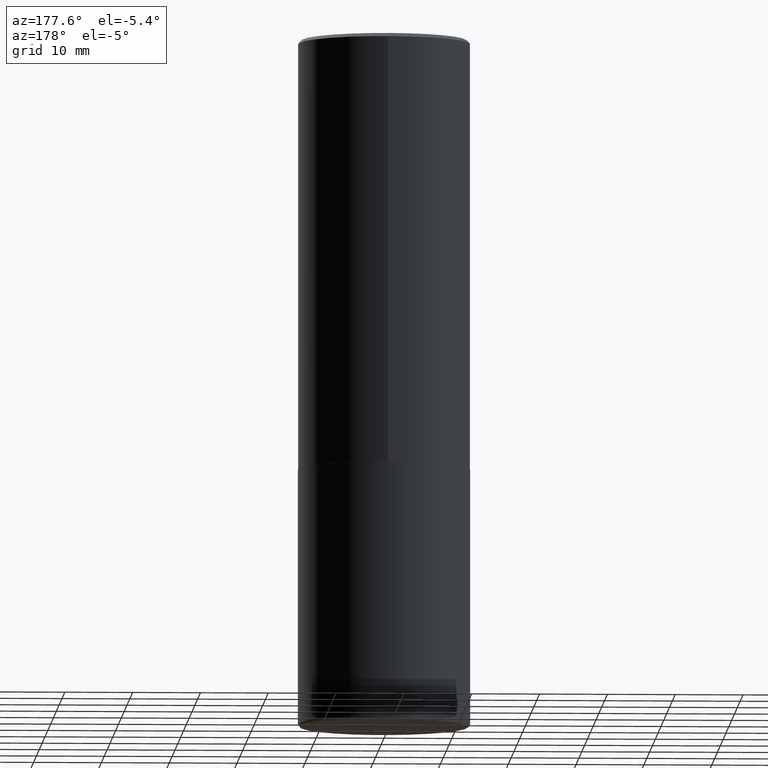
[diagram: clean part render]
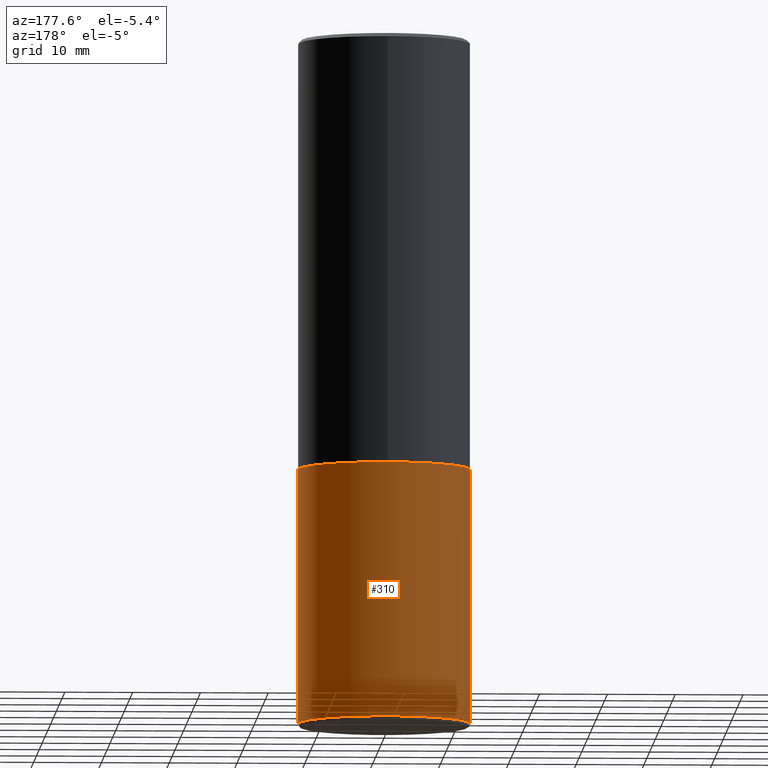
[diagram: same view with one face highlighted and labeled with its STEP entity id]
A machine part, auxiliary view. The second image highlights one B-rep face of the part: STEP entity #310.
In plain terms, the highlighted cylindrical surface (partial cylindrical patch) has radius 12.7 mm, axis along (-0, 0, 1).
Its self-contained STEP definition (entity closure, byte-faithful):
#29 = EDGE_CURVE ( 'NONE', #77, #309, #179, .T. ) ;
#32 = ORIENTED_EDGE ( 'NONE', *, *, #371, .F. ) ;
#37 = DIRECTION ( 'NONE',  ( -2.445468806185136597E-29, 3.491481338843145583E-15, 1.000000000000000000 ) ) ;
#77 = VERTEX_POINT ( 'NONE', #89 ) ;
#89 = CARTESIAN_POINT ( 'NONE',  ( 0.4999999999999998335, -1.738757706743885397E-14, -3.979999999999999982 ) ) ;
#95 = FACE_OUTER_BOUND ( 'NONE', #102, .T. ) ;
#100 = EDGE_CURVE ( 'NONE', #77, #166, #402, .T. ) ;
#102 = EDGE_LOOP ( 'NONE', ( #388, #135, #32, #411 ) ) ;
#103 = EDGE_CURVE ( 'NONE', #309, #382, #240, .T. ) ;
#116 = CARTESIAN_POINT ( 'NONE',  ( 0.5000000000000000000, -3.491481338843133355E-15, 2.438088387897967896E-29 ) ) ;
#127 = CARTESIAN_POINT ( 'NONE',  ( 0.000000000000000000, 0.000000000000000000, 0.000000000000000000 ) ) ;
#134 = DIRECTION ( 'NONE',  ( 1.000000000000000000, -6.982962677686269077E-15, 0.000000000000000000 ) ) ;
#135 = ORIENTED_EDGE ( 'NONE', *, *, #103, .T. ) ;
#142 = CARTESIAN_POINT ( 'NONE',  ( 0.5000000000000000000, -1.222018468595099830E-14, -2.500000000000000000 ) ) ;
#144 = CARTESIAN_POINT ( 'NONE',  ( -0.5000000000000000000, 3.552713678800500929E-15, -2.459467545127452891E-29 ) ) ;
#166 = VERTEX_POINT ( 'NONE', #142 ) ;
#179 = CIRCLE ( 'NONE', #271, 0.4999999999999999445 ) ;
#194 = AXIS2_PLACEMENT_3D ( 'NONE', #127, #308, #222 ) ;
#202 = CARTESIAN_POINT ( 'NONE',  ( 6.113672015462842613E-29, -8.728703347107864943E-15, -2.500000000000000000 ) ) ;
#222 = DIRECTION ( 'NONE',  ( 1.000000000000000000, -6.982962677686266711E-15, 4.876176775795935793E-29 ) ) ;
#238 = CARTESIAN_POINT ( 'NONE',  ( 9.732965848616844417E-29, -1.389609572859572061E-14, -3.979999999999999982 ) ) ;
#240 = LINE ( 'NONE', #144, #415 ) ;
#271 = AXIS2_PLACEMENT_3D ( 'NONE', #238, #370, #298 ) ;
#272 = DIRECTION ( 'NONE',  ( -2.445468806185136877E-29, 3.491481338843145188E-15, 1.000000000000000000 ) ) ;
#283 = CARTESIAN_POINT ( 'NONE',  ( -0.4999999999999998335, -1.034338204979522126E-14, -3.979999999999999982 ) ) ;
#298 = DIRECTION ( 'NONE',  ( 1.000000000000000000, -6.982962677686267499E-15, 0.000000000000000000 ) ) ;
#308 = DIRECTION ( 'NONE',  ( -2.445468806185136597E-29, 3.491481338843145583E-15, 1.000000000000000000 ) ) ;
#309 = VERTEX_POINT ( 'NONE', #283 ) ;
#310 = ADVANCED_FACE ( 'NONE', ( #95 ), #412, .T. ) ;
#345 = VECTOR ( 'NONE', #368, 39.37007874015748143 ) ;
#356 = CIRCLE ( 'NONE', #416, 0.5000000000000000000 ) ;
#368 = DIRECTION ( 'NONE',  ( -2.445468806185136877E-29, 3.491481338843145188E-15, 1.000000000000000000 ) ) ;
#370 = DIRECTION ( 'NONE',  ( -2.445468806185136597E-29, 3.491481338843145583E-15, 1.000000000000000000 ) ) ;
#371 = EDGE_CURVE ( 'NONE', #166, #382, #356, .T. ) ;
#382 = VERTEX_POINT ( 'NONE', #390 ) ;
#388 = ORIENTED_EDGE ( 'NONE', *, *, #29, .T. ) ;
#390 = CARTESIAN_POINT ( 'NONE',  ( -0.5000000000000000000, -7.759685859051291847E-15, -2.500000000000000000 ) ) ;
#402 = LINE ( 'NONE', #116, #345 ) ;
#411 = ORIENTED_EDGE ( 'NONE', *, *, #100, .F. ) ;
#412 = CYLINDRICAL_SURFACE ( 'NONE', #194, 0.5000000000000000000 ) ;
#415 = VECTOR ( 'NONE', #272, 39.37007874015748143 ) ;
#416 = AXIS2_PLACEMENT_3D ( 'NONE', #202, #37, #134 ) ;